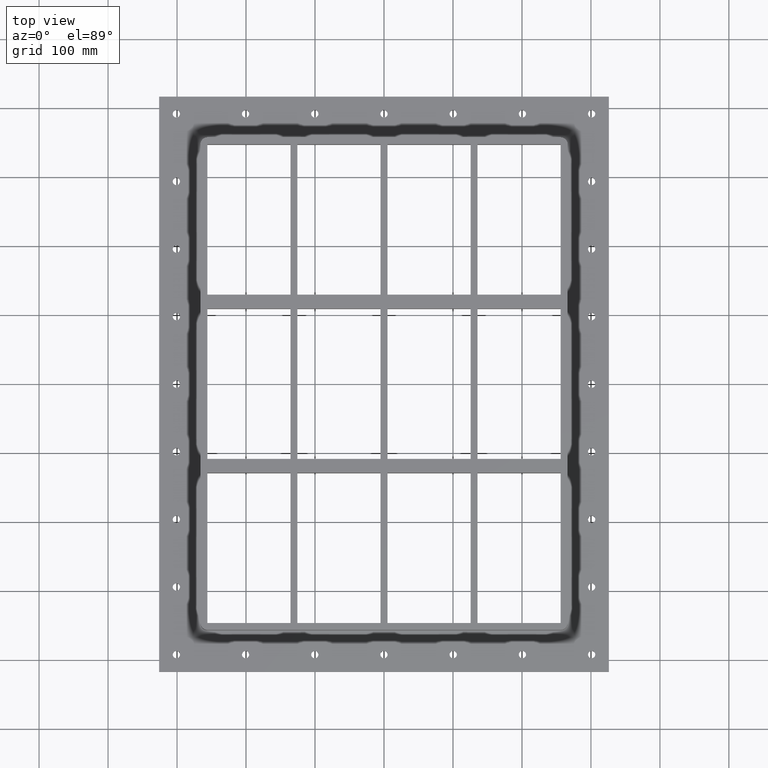
[diagram: clean part render]
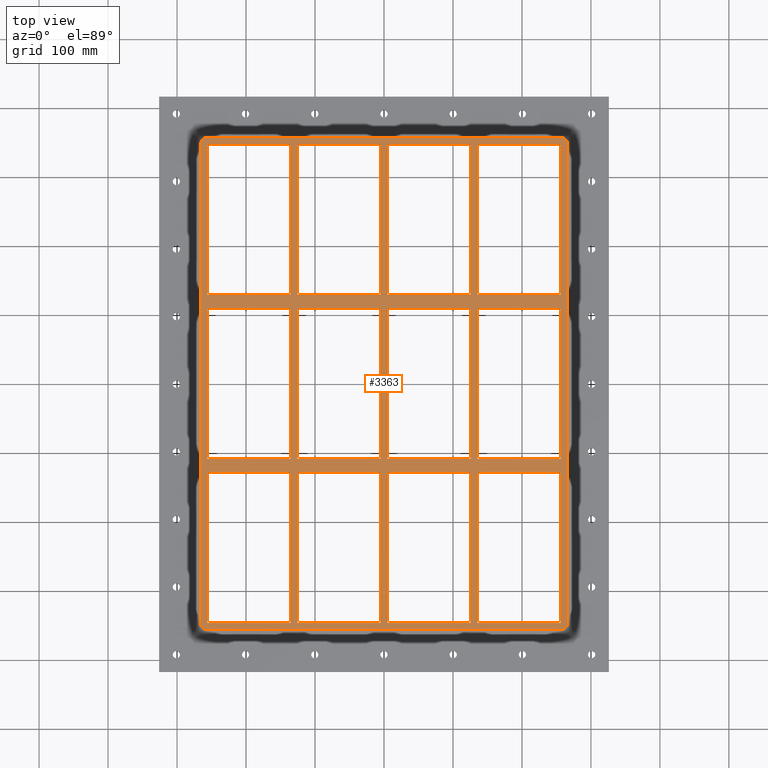
[diagram: same view with one face highlighted and labeled with its STEP entity id]
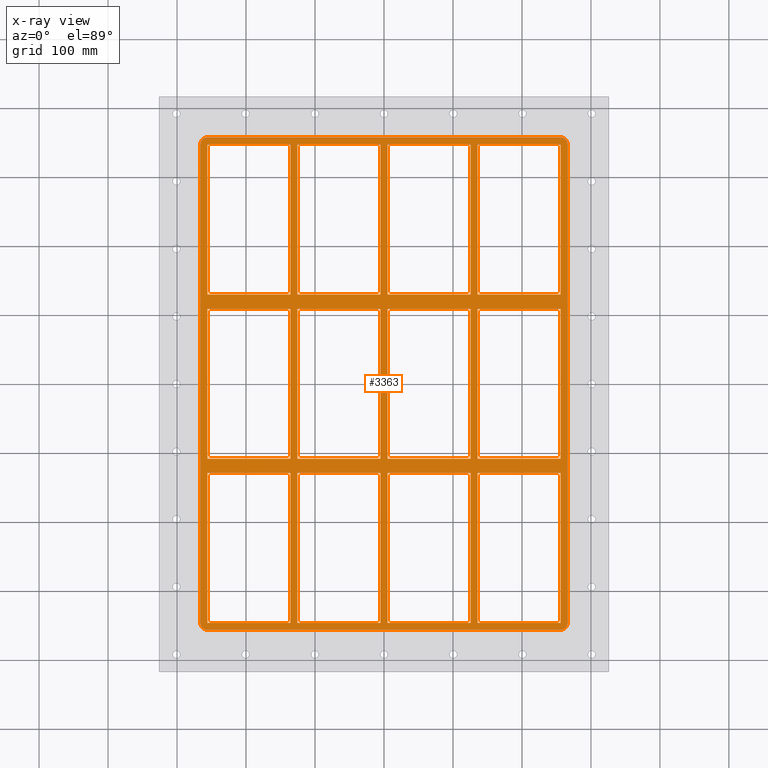
[diagram: x-ray of the same camera — body ghosted, the highlighted face saturated]
A machine part, top view. The second image highlights one B-rep face of the part: STEP entity #3363.
The next image is the same camera in x-ray: the body ghosted, the highlighted face saturated — about 0% of this face is hidden behind the body in this view.
In plain terms, the highlighted planar face has unit normal (0, 0, 1).
Its self-contained STEP definition (entity closure, byte-faithful):
#1346=CARTESIAN_POINT('',(266.00000000000011,-346.99999999999994,30.0));
#1347=VERTEX_POINT('',#1346);
#1354=CARTESIAN_POINT('',(256.00000000000011,-356.99999999999994,30.0));
#1355=VERTEX_POINT('',#1354);
#1356=CARTESIAN_POINT('',(256.00000000000011,-346.99999999999994,30.0));
#1357=DIRECTION('',(0.0,0.0,-1.0));
#1358=DIRECTION('',(0.707106781186547,-0.707106781186547,0.0));
#1359=AXIS2_PLACEMENT_3D('',#1356,#1357,#1358);
#1360=CIRCLE('',#1359,9.999999999999998);
#1361=EDGE_CURVE('',#1347,#1355,#1360,.T.);
#1402=CARTESIAN_POINT('',(266.0,347.00000000000011,30.0));
#1403=VERTEX_POINT('',#1402);
#1410=CARTESIAN_POINT('',(266.00000000000011,-346.99999999999994,30.0));
#1411=DIRECTION('',(0.0,1.0,0.0));
#1412=VECTOR('',#1411,694.0);
#1413=LINE('',#1410,#1412);
#1414=EDGE_CURVE('',#1347,#1403,#1413,.T.);
#1451=CARTESIAN_POINT('',(255.99999999999997,357.00000000000011,30.0));
#1452=VERTEX_POINT('',#1451);
#1459=CARTESIAN_POINT('',(255.99999999999997,347.00000000000011,30.0));
#1460=DIRECTION('',(0.0,0.0,-1.0));
#1461=DIRECTION('',(0.707106781186547,0.707106781186547,0.0));
#1462=AXIS2_PLACEMENT_3D('',#1459,#1460,#1461);
#1463=CIRCLE('',#1462,9.999999999999998);
#1464=EDGE_CURVE('',#1452,#1403,#1463,.T.);
#1500=CARTESIAN_POINT('',(-256.00000000000006,357.00000000000017,30.0));
#1501=VERTEX_POINT('',#1500);
#1508=CARTESIAN_POINT('',(256.0,357.00000000000011,30.0));
#1509=DIRECTION('',(-1.0,0.0,0.0));
#1510=VECTOR('',#1509,512.0);
#1511=LINE('',#1508,#1510);
#1512=EDGE_CURVE('',#1452,#1501,#1511,.T.);
#1994=CARTESIAN_POINT('',(-255.99999999999969,-356.99999999999994,30.0));
#1995=VERTEX_POINT('',#1994);
#1996=CARTESIAN_POINT('',(-255.99999999999972,-356.99999999999994,30.0));
#1997=DIRECTION('',(1.0,0.0,0.0));
#1998=VECTOR('',#1997,511.99999999999977);
#1999=LINE('',#1996,#1998);
#2000=EDGE_CURVE('',#1995,#1355,#1999,.T.);
#2018=CARTESIAN_POINT('',(-265.99999999999972,-346.99999999999989,30.0));
#2019=VERTEX_POINT('',#2018);
#2020=CARTESIAN_POINT('',(-255.99999999999969,-346.99999999999989,30.0));
#2021=DIRECTION('',(0.0,0.0,-1.0));
#2022=DIRECTION('',(-0.707106781186547,-0.707106781186547,0.0));
#2023=AXIS2_PLACEMENT_3D('',#2020,#2021,#2022);
#2024=CIRCLE('',#2023,9.999999999999998);
#2025=EDGE_CURVE('',#1995,#2019,#2024,.T.);
#2042=CARTESIAN_POINT('',(-266.00000000000011,347.00000000000017,30.0));
#2043=VERTEX_POINT('',#2042);
#2050=CARTESIAN_POINT('',(-256.00000000000011,347.00000000000017,30.0));
#2051=DIRECTION('',(0.0,0.0,-1.0));
#2052=DIRECTION('',(-0.707106781186547,0.707106781186547,0.0));
#2053=AXIS2_PLACEMENT_3D('',#2050,#2051,#2052);
#2054=CIRCLE('',#2053,9.999999999999998);
#2055=EDGE_CURVE('',#2043,#1501,#2054,.T.);
#2101=CARTESIAN_POINT('',(135.49999999999989,347.00000000000017,30.0));
#2102=VERTEX_POINT('',#2101);
#2109=CARTESIAN_POINT('',(135.49999999999994,129.00000000000011,30.0));
#2110=VERTEX_POINT('',#2109);
#2111=CARTESIAN_POINT('',(135.49999999999994,129.00000000000011,30.0));
#2112=DIRECTION('',(0.0,1.0,0.0));
#2113=VECTOR('',#2112,218.00000000000011);
#2114=LINE('',#2111,#2113);
#2115=EDGE_CURVE('',#2110,#2102,#2114,.T.);
#2133=CARTESIAN_POINT('',(255.99999999999994,129.00000000000011,30.0));
#2134=VERTEX_POINT('',#2133);
#2135=CARTESIAN_POINT('',(255.99999999999994,129.00000000000011,30.0));
#2136=DIRECTION('',(-1.0,0.0,0.0));
#2137=VECTOR('',#2136,120.5);
#2138=LINE('',#2135,#2137);
#2139=EDGE_CURVE('',#2134,#2110,#2138,.T.);
#2157=CARTESIAN_POINT('',(255.99999999999991,347.00000000000017,30.0));
#2158=VERTEX_POINT('',#2157);
#2159=CARTESIAN_POINT('',(255.99999999999991,347.00000000000017,30.0));
#2160=DIRECTION('',(0.0,-1.0,0.0));
#2161=VECTOR('',#2160,218.00000000000003);
#2162=LINE('',#2159,#2161);
#2163=EDGE_CURVE('',#2158,#2134,#2162,.T.);
#2181=CARTESIAN_POINT('',(135.49999999999989,347.00000000000017,30.0));
#2182=DIRECTION('',(1.0,0.0,0.0));
#2183=VECTOR('',#2182,120.5);
#2184=LINE('',#2181,#2183);
#2185=EDGE_CURVE('',#2102,#2158,#2184,.T.);
#2197=CARTESIAN_POINT('',(135.50000000000003,109.00000000000013,30.0));
#2198=VERTEX_POINT('',#2197);
#2205=CARTESIAN_POINT('',(135.50000000000009,-108.99999999999989,30.0));
#2206=VERTEX_POINT('',#2205);
#2207=CARTESIAN_POINT('',(135.50000000000011,-108.99999999999989,30.0));
#2208=DIRECTION('',(0.0,1.0,0.0));
#2209=VECTOR('',#2208,218.0);
#2210=LINE('',#2207,#2209);
#2211=EDGE_CURVE('',#2206,#2198,#2210,.T.);
#2229=CARTESIAN_POINT('',(256.00000000000011,-108.99999999999989,30.0));
#2230=VERTEX_POINT('',#2229);
#2231=CARTESIAN_POINT('',(256.00000000000011,-108.99999999999989,30.0));
#2232=DIRECTION('',(-1.0,0.0,0.0));
#2233=VECTOR('',#2232,120.5);
#2234=LINE('',#2231,#2233);
#2235=EDGE_CURVE('',#2230,#2206,#2234,.T.);
#2253=CARTESIAN_POINT('',(256.00000000000006,109.00000000000013,30.0));
#2254=VERTEX_POINT('',#2253);
#2255=CARTESIAN_POINT('',(256.00000000000011,109.00000000000013,30.0));
#2256=DIRECTION('',(0.0,-1.0,0.0));
#2257=VECTOR('',#2256,218.0);
#2258=LINE('',#2255,#2257);
#2259=EDGE_CURVE('',#2254,#2230,#2258,.T.);
#2277=CARTESIAN_POINT('',(135.5,109.00000000000013,30.0));
#2278=DIRECTION('',(1.0,0.0,0.0));
#2279=VECTOR('',#2278,120.50000000000006);
#2280=LINE('',#2277,#2279);
#2281=EDGE_CURVE('',#2198,#2254,#2280,.T.);
#2293=CARTESIAN_POINT('',(135.50000000000017,-128.99999999999989,30.0));
#2294=VERTEX_POINT('',#2293);
#2301=CARTESIAN_POINT('',(135.50000000000023,-346.99999999999989,30.0));
#2302=VERTEX_POINT('',#2301);
#2303=CARTESIAN_POINT('',(135.50000000000023,-346.99999999999989,30.0));
#2304=DIRECTION('',(0.0,1.0,0.0));
#2305=VECTOR('',#2304,218.0);
#2306=LINE('',#2303,#2305);
#2307=EDGE_CURVE('',#2302,#2294,#2306,.T.);
#2325=CARTESIAN_POINT('',(256.00000000000023,-346.99999999999989,30.0));
#2326=VERTEX_POINT('',#2325);
#2327=CARTESIAN_POINT('',(256.00000000000023,-346.99999999999989,30.0));
#2328=DIRECTION('',(-1.0,0.0,0.0));
#2329=VECTOR('',#2328,120.5);
#2330=LINE('',#2327,#2329);
#2331=EDGE_CURVE('',#2326,#2302,#2330,.T.);
#2349=CARTESIAN_POINT('',(256.00000000000017,-128.99999999999989,30.0));
#2350=VERTEX_POINT('',#2349);
#2351=CARTESIAN_POINT('',(256.00000000000017,-128.99999999999989,30.0));
#2352=DIRECTION('',(0.0,-1.0,0.0));
#2353=VECTOR('',#2352,218.0);
#2354=LINE('',#2351,#2353);
#2355=EDGE_CURVE('',#2350,#2326,#2354,.T.);
#2373=CARTESIAN_POINT('',(135.50000000000017,-128.99999999999989,30.0));
#2374=DIRECTION('',(1.0,0.0,0.0));
#2375=VECTOR('',#2374,120.5);
#2376=LINE('',#2373,#2375);
#2377=EDGE_CURVE('',#2294,#2350,#2376,.T.);
#2389=CARTESIAN_POINT('',(4.999999999999869,347.00000000000017,30.0));
#2390=VERTEX_POINT('',#2389);
#2397=CARTESIAN_POINT('',(4.999999999999941,129.00000000000011,30.0));
#2398=VERTEX_POINT('',#2397);
#2399=CARTESIAN_POINT('',(4.999999999999941,129.00000000000011,30.0));
#2400=DIRECTION('',(0.0,1.0,0.0));
#2401=VECTOR('',#2400,218.00000000000006);
#2402=LINE('',#2399,#2401);
#2403=EDGE_CURVE('',#2398,#2390,#2402,.T.);
#2421=CARTESIAN_POINT('',(125.49999999999996,129.00000000000011,30.0));
#2422=VERTEX_POINT('',#2421);
#2423=CARTESIAN_POINT('',(125.49999999999996,129.00000000000011,30.0));
#2424=DIRECTION('',(-1.0,0.0,0.0));
#2425=VECTOR('',#2424,120.50000000000001);
#2426=LINE('',#2423,#2425);
#2427=EDGE_CURVE('',#2422,#2398,#2426,.T.);
#2445=CARTESIAN_POINT('',(125.49999999999991,347.00000000000017,30.0));
#2446=VERTEX_POINT('',#2445);
#2447=CARTESIAN_POINT('',(125.49999999999991,347.00000000000017,30.0));
#2448=DIRECTION('',(0.0,-1.0,0.0));
#2449=VECTOR('',#2448,218.00000000000003);
#2450=LINE('',#2447,#2449);
#2451=EDGE_CURVE('',#2446,#2422,#2450,.T.);
#2469=CARTESIAN_POINT('',(4.999999999999869,347.00000000000017,30.0));
#2470=DIRECTION('',(1.0,0.0,0.0));
#2471=VECTOR('',#2470,120.50000000000006);
#2472=LINE('',#2469,#2471);
#2473=EDGE_CURVE('',#2390,#2446,#2472,.T.);
#2485=CARTESIAN_POINT('',(4.999999999999976,109.00000000000013,30.0));
#2486=VERTEX_POINT('',#2485);
#2493=CARTESIAN_POINT('',(5.000000000000048,-108.99999999999989,30.0));
#2494=VERTEX_POINT('',#2493);
#2495=CARTESIAN_POINT('',(5.000000000000048,-108.99999999999989,30.0));
#2496=DIRECTION('',(0.0,1.0,0.0));
#2497=VECTOR('',#2496,218.0);
#2498=LINE('',#2495,#2497);
#2499=EDGE_CURVE('',#2494,#2486,#2498,.T.);
#2517=CARTESIAN_POINT('',(125.50000000000006,-108.99999999999989,30.0));
#2518=VERTEX_POINT('',#2517);
#2519=CARTESIAN_POINT('',(125.50000000000006,-108.99999999999989,30.0));
#2520=DIRECTION('',(-1.0,0.0,0.0));
#2521=VECTOR('',#2520,120.50000000000001);
#2522=LINE('',#2519,#2521);
#2523=EDGE_CURVE('',#2518,#2494,#2522,.T.);
#2541=CARTESIAN_POINT('',(125.50000000000003,109.00000000000013,30.0));
#2542=VERTEX_POINT('',#2541);
#2543=CARTESIAN_POINT('',(125.50000000000003,109.00000000000013,30.0));
#2544=DIRECTION('',(0.0,-1.0,0.0));
#2545=VECTOR('',#2544,218.0);
#2546=LINE('',#2543,#2545);
#2547=EDGE_CURVE('',#2542,#2518,#2546,.T.);
#2565=CARTESIAN_POINT('',(4.999999999999976,109.00000000000013,30.0));
#2566=DIRECTION('',(1.0,0.0,0.0));
#2567=VECTOR('',#2566,120.50000000000006);
#2568=LINE('',#2565,#2567);
#2569=EDGE_CURVE('',#2486,#2542,#2568,.T.);
#2581=CARTESIAN_POINT('',(5.000000000000119,-128.99999999999989,30.0));
#2582=VERTEX_POINT('',#2581);
#2589=CARTESIAN_POINT('',(5.00000000000019,-346.99999999999989,30.0));
#2590=VERTEX_POINT('',#2589);
#2591=CARTESIAN_POINT('',(5.00000000000019,-346.99999999999989,30.0));
#2592=DIRECTION('',(0.0,1.0,0.0));
#2593=VECTOR('',#2592,218.0);
#2594=LINE('',#2591,#2593);
#2595=EDGE_CURVE('',#2590,#2582,#2594,.T.);
#2613=CARTESIAN_POINT('',(125.5000000000002,-346.99999999999989,30.0));
#2614=VERTEX_POINT('',#2613);
#2615=CARTESIAN_POINT('',(125.5000000000002,-346.99999999999989,30.0));
#2616=DIRECTION('',(-1.0,0.0,0.0));
#2617=VECTOR('',#2616,120.50000000000001);
#2618=LINE('',#2615,#2617);
#2619=EDGE_CURVE('',#2614,#2590,#2618,.T.);
#2637=CARTESIAN_POINT('',(125.50000000000017,-128.99999999999989,30.0));
#2638=VERTEX_POINT('',#2637);
#2639=CARTESIAN_POINT('',(125.50000000000016,-128.99999999999989,30.0));
#2640=DIRECTION('',(0.0,-1.0,0.0));
#2641=VECTOR('',#2640,218.0);
#2642=LINE('',#2639,#2641);
#2643=EDGE_CURVE('',#2638,#2614,#2642,.T.);
#2661=CARTESIAN_POINT('',(5.000000000000119,-128.99999999999989,30.0));
#2662=DIRECTION('',(1.0,0.0,0.0));
#2663=VECTOR('',#2662,120.50000000000007);
#2664=LINE('',#2661,#2663);
#2665=EDGE_CURVE('',#2582,#2638,#2664,.T.);
#2677=CARTESIAN_POINT('',(-125.50000000000017,347.00000000000017,30.0));
#2678=VERTEX_POINT('',#2677);
#2685=CARTESIAN_POINT('',(-125.5000000000001,129.00000000000011,30.0));
#2686=VERTEX_POINT('',#2685);
#2687=CARTESIAN_POINT('',(-125.5000000000001,129.00000000000011,30.0));
#2688=DIRECTION('',(0.0,1.0,0.0));
#2689=VECTOR('',#2688,218.00000000000006);
#2690=LINE('',#2687,#2689);
#2691=EDGE_CURVE('',#2686,#2678,#2690,.T.);
#2709=CARTESIAN_POINT('',(-5.000000000000094,129.00000000000011,30.0));
#2710=VERTEX_POINT('',#2709);
#2711=CARTESIAN_POINT('',(-5.000000000000094,129.00000000000011,30.0));
#2712=DIRECTION('',(-1.0,0.0,0.0));
#2713=VECTOR('',#2712,120.5);
#2714=LINE('',#2711,#2713);
#2715=EDGE_CURVE('',#2710,#2686,#2714,.T.);
#2733=CARTESIAN_POINT('',(-5.00000000000013,347.00000000000017,30.0));
#2734=VERTEX_POINT('',#2733);
#2735=CARTESIAN_POINT('',(-5.000000000000131,347.00000000000017,30.0));
#2736=DIRECTION('',(0.0,-1.0,0.0));
#2737=VECTOR('',#2736,218.00000000000003);
#2738=LINE('',#2735,#2737);
#2739=EDGE_CURVE('',#2734,#2710,#2738,.T.);
#2757=CARTESIAN_POINT('',(-125.50000000000017,347.00000000000017,30.0));
#2758=DIRECTION('',(1.0,0.0,0.0));
#2759=VECTOR('',#2758,120.50000000000003);
#2760=LINE('',#2757,#2759);
#2761=EDGE_CURVE('',#2678,#2734,#2760,.T.);
#2773=CARTESIAN_POINT('',(-125.50000000000003,109.00000000000013,30.0));
#2774=VERTEX_POINT('',#2773);
#2781=CARTESIAN_POINT('',(-125.49999999999996,-108.99999999999989,30.0));
#2782=VERTEX_POINT('',#2781);
#2783=CARTESIAN_POINT('',(-125.49999999999996,-108.99999999999989,30.0));
#2784=DIRECTION('',(0.0,1.0,0.0));
#2785=VECTOR('',#2784,218.0);
#2786=LINE('',#2783,#2785);
#2787=EDGE_CURVE('',#2782,#2774,#2786,.T.);
#2805=CARTESIAN_POINT('',(-4.999999999999953,-108.99999999999989,30.0));
#2806=VERTEX_POINT('',#2805);
#2807=CARTESIAN_POINT('',(-4.999999999999953,-108.99999999999989,30.0));
#2808=DIRECTION('',(-1.0,0.0,0.0));
#2809=VECTOR('',#2808,120.49999999999999);
#2810=LINE('',#2807,#2809);
#2811=EDGE_CURVE('',#2806,#2782,#2810,.T.);
#2829=CARTESIAN_POINT('',(-4.999999999999989,109.00000000000013,30.0));
#2830=VERTEX_POINT('',#2829);
#2831=CARTESIAN_POINT('',(-4.999999999999989,109.00000000000013,30.0));
#2832=DIRECTION('',(0.0,-1.0,0.0));
#2833=VECTOR('',#2832,218.0);
#2834=LINE('',#2831,#2833);
#2835=EDGE_CURVE('',#2830,#2806,#2834,.T.);
#2853=CARTESIAN_POINT('',(-125.50000000000003,109.00000000000013,30.0));
#2854=DIRECTION('',(1.0,0.0,0.0));
#2855=VECTOR('',#2854,120.50000000000003);
#2856=LINE('',#2853,#2855);
#2857=EDGE_CURVE('',#2774,#2830,#2856,.T.);
#2869=CARTESIAN_POINT('',(-125.4999999999999,-128.99999999999989,30.0));
#2870=VERTEX_POINT('',#2869);
#2877=CARTESIAN_POINT('',(-125.49999999999983,-346.99999999999989,30.0));
#2878=VERTEX_POINT('',#2877);
#2879=CARTESIAN_POINT('',(-125.49999999999983,-346.99999999999989,30.0));
#2880=DIRECTION('',(0.0,1.0,0.0));
#2881=VECTOR('',#2880,218.0);
#2882=LINE('',#2879,#2881);
#2883=EDGE_CURVE('',#2878,#2870,#2882,.T.);
#2901=CARTESIAN_POINT('',(-4.999999999999829,-346.99999999999989,30.0));
#2902=VERTEX_POINT('',#2901);
#2903=CARTESIAN_POINT('',(-4.999999999999829,-346.99999999999989,30.0));
#2904=DIRECTION('',(-1.0,0.0,0.0));
#2905=VECTOR('',#2904,120.50000000000001);
#2906=LINE('',#2903,#2905);
#2907=EDGE_CURVE('',#2902,#2878,#2906,.T.);
#2925=CARTESIAN_POINT('',(-4.999999999999864,-128.99999999999989,30.0));
#2926=VERTEX_POINT('',#2925);
#2927=CARTESIAN_POINT('',(-4.999999999999864,-128.99999999999989,30.0));
#2928=DIRECTION('',(0.0,-1.0,0.0));
#2929=VECTOR('',#2928,218.0);
#2930=LINE('',#2927,#2929);
#2931=EDGE_CURVE('',#2926,#2902,#2930,.T.);
#2949=CARTESIAN_POINT('',(-125.4999999999999,-128.99999999999989,30.0));
#2950=DIRECTION('',(1.0,0.0,0.0));
#2951=VECTOR('',#2950,120.50000000000003);
#2952=LINE('',#2949,#2951);
#2953=EDGE_CURVE('',#2870,#2926,#2952,.T.);
#2965=CARTESIAN_POINT('',(-256.00000000000017,347.00000000000017,30.0));
#2966=VERTEX_POINT('',#2965);
#2973=CARTESIAN_POINT('',(-256.00000000000011,129.00000000000011,30.0));
#2974=VERTEX_POINT('',#2973);
#2975=CARTESIAN_POINT('',(-256.00000000000011,129.00000000000011,30.0));
#2976=DIRECTION('',(0.0,1.0,0.0));
#2977=VECTOR('',#2976,218.0);
#2978=LINE('',#2975,#2977);
#2979=EDGE_CURVE('',#2974,#2966,#2978,.T.);
#2997=CARTESIAN_POINT('',(-135.50000000000009,129.00000000000011,30.0));
#2998=VERTEX_POINT('',#2997);
#2999=CARTESIAN_POINT('',(-135.50000000000006,129.00000000000011,30.0));
#3000=DIRECTION('',(-1.0,0.0,0.0));
#3001=VECTOR('',#3000,120.50000000000006);
#3002=LINE('',#2999,#3001);
#3003=EDGE_CURVE('',#2998,#2974,#3002,.T.);
#3021=CARTESIAN_POINT('',(-135.50000000000011,347.00000000000017,30.0));
#3022=VERTEX_POINT('',#3021);
#3023=CARTESIAN_POINT('',(-135.50000000000011,347.00000000000017,30.0));
#3024=DIRECTION('',(0.0,-1.0,0.0));
#3025=VECTOR('',#3024,218.00000000000003);
#3026=LINE('',#3023,#3025);
#3027=EDGE_CURVE('',#3022,#2998,#3026,.T.);
#3045=CARTESIAN_POINT('',(-256.00000000000023,347.00000000000017,30.0));
#3046=DIRECTION('',(1.0,0.0,0.0));
#3047=VECTOR('',#3046,120.50000000000011);
#3048=LINE('',#3045,#3047);
#3049=EDGE_CURVE('',#2966,#3022,#3048,.T.);
#3061=CARTESIAN_POINT('',(-256.00000000000006,109.00000000000013,30.0));
#3062=VERTEX_POINT('',#3061);
#3069=CARTESIAN_POINT('',(-255.99999999999997,-108.99999999999989,30.0));
#3070=VERTEX_POINT('',#3069);
#3071=CARTESIAN_POINT('',(-255.99999999999997,-108.99999999999989,30.0));
#3072=DIRECTION('',(0.0,1.0,0.0));
#3073=VECTOR('',#3072,218.00000000000003);
#3074=LINE('',#3071,#3073);
#3075=EDGE_CURVE('',#3070,#3062,#3074,.T.);
#3093=CARTESIAN_POINT('',(-135.49999999999994,-108.99999999999989,30.0));
#3094=VERTEX_POINT('',#3093);
#3095=CARTESIAN_POINT('',(-135.49999999999994,-108.99999999999989,30.0));
#3096=DIRECTION('',(-1.0,0.0,0.0));
#3097=VECTOR('',#3096,120.50000000000003);
#3098=LINE('',#3095,#3097);
#3099=EDGE_CURVE('',#3094,#3070,#3098,.T.);
#3117=CARTESIAN_POINT('',(-135.5,109.00000000000013,30.0));
#3118=VERTEX_POINT('',#3117);
#3119=CARTESIAN_POINT('',(-135.49999999999997,109.00000000000013,30.0));
#3120=DIRECTION('',(0.0,-1.0,0.0));
#3121=VECTOR('',#3120,218.0);
#3122=LINE('',#3119,#3121);
#3123=EDGE_CURVE('',#3118,#3094,#3122,.T.);
#3141=CARTESIAN_POINT('',(-256.00000000000006,109.00000000000013,30.0));
#3142=DIRECTION('',(1.0,0.0,0.0));
#3143=VECTOR('',#3142,120.50000000000006);
#3144=LINE('',#3141,#3143);
#3145=EDGE_CURVE('',#3062,#3118,#3144,.T.);
#3157=CARTESIAN_POINT('',(-255.99999999999991,-128.99999999999989,30.0));
#3158=VERTEX_POINT('',#3157);
#3165=CARTESIAN_POINT('',(-255.99999999999983,-346.99999999999989,30.0));
#3166=VERTEX_POINT('',#3165);
#3167=CARTESIAN_POINT('',(-255.99999999999983,-346.99999999999989,30.0));
#3168=DIRECTION('',(0.0,1.0,0.0));
#3169=VECTOR('',#3168,218.0);
#3170=LINE('',#3167,#3169);
#3171=EDGE_CURVE('',#3166,#3158,#3170,.T.);
#3189=CARTESIAN_POINT('',(-135.49999999999983,-346.99999999999989,30.0));
#3190=VERTEX_POINT('',#3189);
#3191=CARTESIAN_POINT('',(-135.49999999999983,-346.99999999999989,30.0));
#3192=DIRECTION('',(-1.0,0.0,0.0));
#3193=VECTOR('',#3192,120.5);
#3194=LINE('',#3191,#3193);
#3195=EDGE_CURVE('',#3190,#3166,#3194,.T.);
#3213=CARTESIAN_POINT('',(-135.49999999999986,-128.99999999999989,30.0));
#3214=VERTEX_POINT('',#3213);
#3215=CARTESIAN_POINT('',(-135.49999999999986,-128.99999999999989,30.0));
#3216=DIRECTION('',(0.0,-1.0,0.0));
#3217=VECTOR('',#3216,218.0);
#3218=LINE('',#3215,#3217);
#3219=EDGE_CURVE('',#3214,#3190,#3218,.T.);
#3237=CARTESIAN_POINT('',(-255.99999999999989,-128.99999999999989,30.0));
#3238=DIRECTION('',(1.0,0.0,0.0));
#3239=VECTOR('',#3238,120.50000000000003);
#3240=LINE('',#3237,#3239);
#3241=EDGE_CURVE('',#3158,#3214,#3240,.T.);
#3254=CARTESIAN_POINT('',(-266.00000000000011,347.00000000000017,30.0));
#3255=DIRECTION('',(0.0,-1.0,0.0));
#3256=VECTOR('',#3255,694.0);
#3257=LINE('',#3254,#3256);
#3258=EDGE_CURVE('',#2043,#2019,#3257,.T.);
#3276=CARTESIAN_POINT('',(6.843108E-014,1.228338E-013,30.0));
#3277=DIRECTION('',(0.0,0.0,1.0));
#3278=DIRECTION('',(1.0,0.0,0.0));
#3279=AXIS2_PLACEMENT_3D('',#3276,#3277,#3278);
#3280=PLANE('',#3279);
#3281=ORIENTED_EDGE('',*,*,#1361,.F.);
#3282=ORIENTED_EDGE('',*,*,#1414,.T.);
#3283=ORIENTED_EDGE('',*,*,#1464,.F.);
#3284=ORIENTED_EDGE('',*,*,#1512,.T.);
#3285=ORIENTED_EDGE('',*,*,#2055,.F.);
#3286=ORIENTED_EDGE('',*,*,#3258,.T.);
#3287=ORIENTED_EDGE('',*,*,#2025,.F.);
#3288=ORIENTED_EDGE('',*,*,#2000,.T.);
#3289=EDGE_LOOP('',(#3281,#3282,#3283,#3284,#3285,#3286,#3287,#3288));
#3290=FACE_OUTER_BOUND('',#3289,.T.);
#3291=ORIENTED_EDGE('',*,*,#2115,.T.);
#3292=ORIENTED_EDGE('',*,*,#2185,.T.);
#3293=ORIENTED_EDGE('',*,*,#2163,.T.);
#3294=ORIENTED_EDGE('',*,*,#2139,.T.);
#3295=EDGE_LOOP('',(#3291,#3292,#3293,#3294));
#3296=FACE_BOUND('',#3295,.T.);
#3297=ORIENTED_EDGE('',*,*,#2211,.T.);
#3298=ORIENTED_EDGE('',*,*,#2281,.T.);
#3299=ORIENTED_EDGE('',*,*,#2259,.T.);
#3300=ORIENTED_EDGE('',*,*,#2235,.T.);
#3301=EDGE_LOOP('',(#3297,#3298,#3299,#3300));
#3302=FACE_BOUND('',#3301,.T.);
#3303=ORIENTED_EDGE('',*,*,#2307,.T.);
#3304=ORIENTED_EDGE('',*,*,#2377,.T.);
#3305=ORIENTED_EDGE('',*,*,#2355,.T.);
#3306=ORIENTED_EDGE('',*,*,#2331,.T.);
#3307=EDGE_LOOP('',(#3303,#3304,#3305,#3306));
#3308=FACE_BOUND('',#3307,.T.);
#3309=ORIENTED_EDGE('',*,*,#2403,.T.);
#3310=ORIENTED_EDGE('',*,*,#2473,.T.);
#3311=ORIENTED_EDGE('',*,*,#2451,.T.);
#3312=ORIENTED_EDGE('',*,*,#2427,.T.);
#3313=EDGE_LOOP('',(#3309,#3310,#3311,#3312));
#3314=FACE_BOUND('',#3313,.T.);
#3315=ORIENTED_EDGE('',*,*,#2499,.T.);
#3316=ORIENTED_EDGE('',*,*,#2569,.T.);
#3317=ORIENTED_EDGE('',*,*,#2547,.T.);
#3318=ORIENTED_EDGE('',*,*,#2523,.T.);
#3319=EDGE_LOOP('',(#3315,#3316,#3317,#3318));
#3320=FACE_BOUND('',#3319,.T.);
#3321=ORIENTED_EDGE('',*,*,#2595,.T.);
#3322=ORIENTED_EDGE('',*,*,#2665,.T.);
#3323=ORIENTED_EDGE('',*,*,#2643,.T.);
#3324=ORIENTED_EDGE('',*,*,#2619,.T.);
#3325=EDGE_LOOP('',(#3321,#3322,#3323,#3324));
#3326=FACE_BOUND('',#3325,.T.);
#3327=ORIENTED_EDGE('',*,*,#2691,.T.);
#3328=ORIENTED_EDGE('',*,*,#2761,.T.);
#3329=ORIENTED_EDGE('',*,*,#2739,.T.);
#3330=ORIENTED_EDGE('',*,*,#2715,.T.);
#3331=EDGE_LOOP('',(#3327,#3328,#3329,#3330));
#3332=FACE_BOUND('',#3331,.T.);
#3333=ORIENTED_EDGE('',*,*,#2787,.T.);
#3334=ORIENTED_EDGE('',*,*,#2857,.T.);
#3335=ORIENTED_EDGE('',*,*,#2835,.T.);
#3336=ORIENTED_EDGE('',*,*,#2811,.T.);
#3337=EDGE_LOOP('',(#3333,#3334,#3335,#3336));
#3338=FACE_BOUND('',#3337,.T.);
#3339=ORIENTED_EDGE('',*,*,#2883,.T.);
#3340=ORIENTED_EDGE('',*,*,#2953,.T.);
#3341=ORIENTED_EDGE('',*,*,#2931,.T.);
#3342=ORIENTED_EDGE('',*,*,#2907,.T.);
#3343=EDGE_LOOP('',(#3339,#3340,#3341,#3342));
#3344=FACE_BOUND('',#3343,.T.);
#3345=ORIENTED_EDGE('',*,*,#2979,.T.);
#3346=ORIENTED_EDGE('',*,*,#3049,.T.);
#3347=ORIENTED_EDGE('',*,*,#3027,.T.);
#3348=ORIENTED_EDGE('',*,*,#3003,.T.);
#3349=EDGE_LOOP('',(#3345,#3346,#3347,#3348));
#3350=FACE_BOUND('',#3349,.T.);
#3351=ORIENTED_EDGE('',*,*,#3075,.T.);
#3352=ORIENTED_EDGE('',*,*,#3145,.T.);
#3353=ORIENTED_EDGE('',*,*,#3123,.T.);
#3354=ORIENTED_EDGE('',*,*,#3099,.T.);
#3355=EDGE_LOOP('',(#3351,#3352,#3353,#3354));
#3356=FACE_BOUND('',#3355,.T.);
#3357=ORIENTED_EDGE('',*,*,#3219,.T.);
#3358=ORIENTED_EDGE('',*,*,#3195,.T.);
#3359=ORIENTED_EDGE('',*,*,#3171,.T.);
#3360=ORIENTED_EDGE('',*,*,#3241,.T.);
#3361=EDGE_LOOP('',(#3357,#3358,#3359,#3360));
#3362=FACE_BOUND('',#3361,.T.);
#3363=ADVANCED_FACE('',(#3290,#3296,#3302,#3308,#3314,#3320,#3326,#3332,#3338,#3344,#3350,#3356,#3362),#3280,.T.);